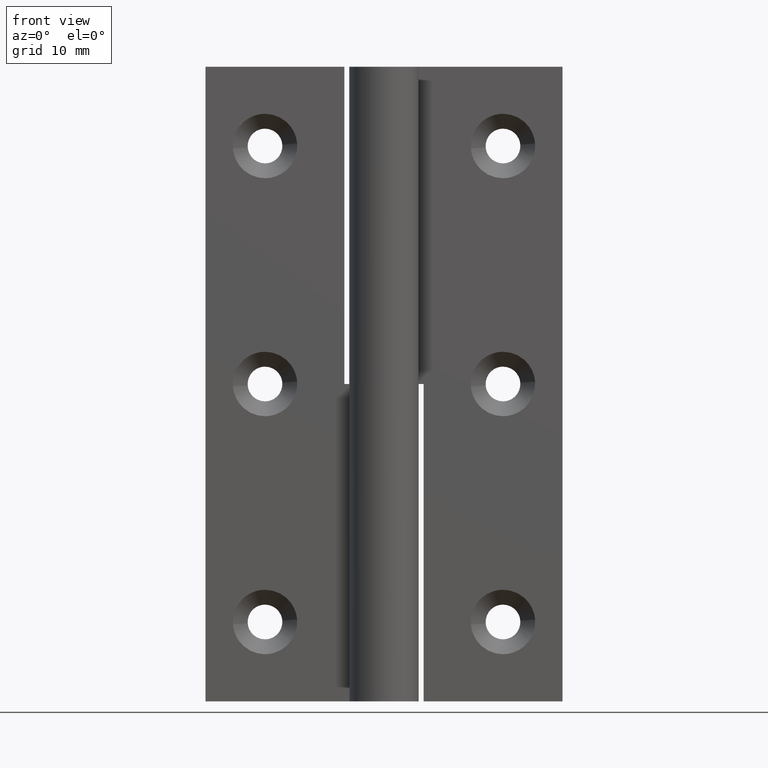
[diagram: clean part render]
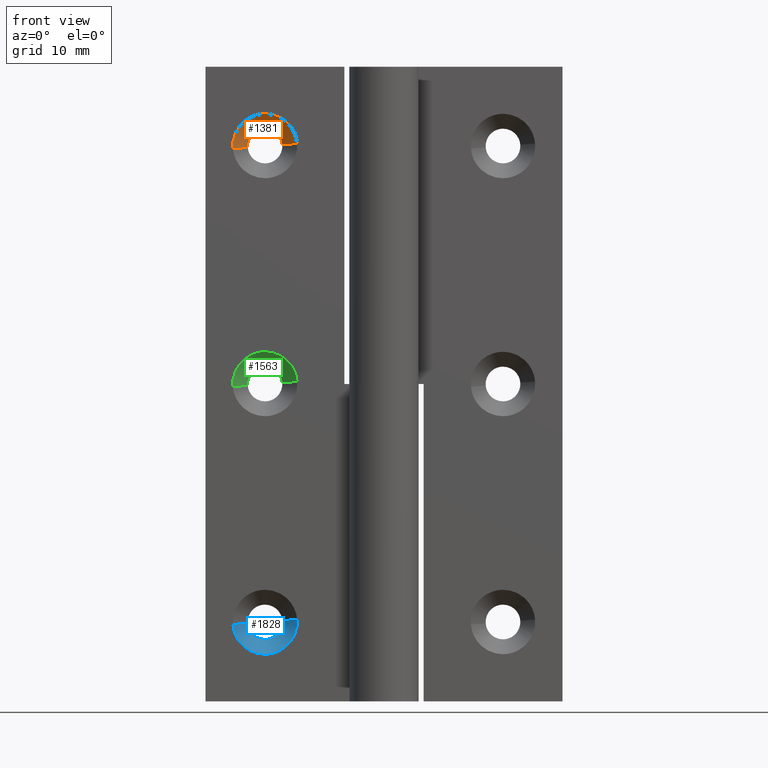
[diagram: same view with three faces highlighted in distinct colors, each labeled with its STEP entity id]
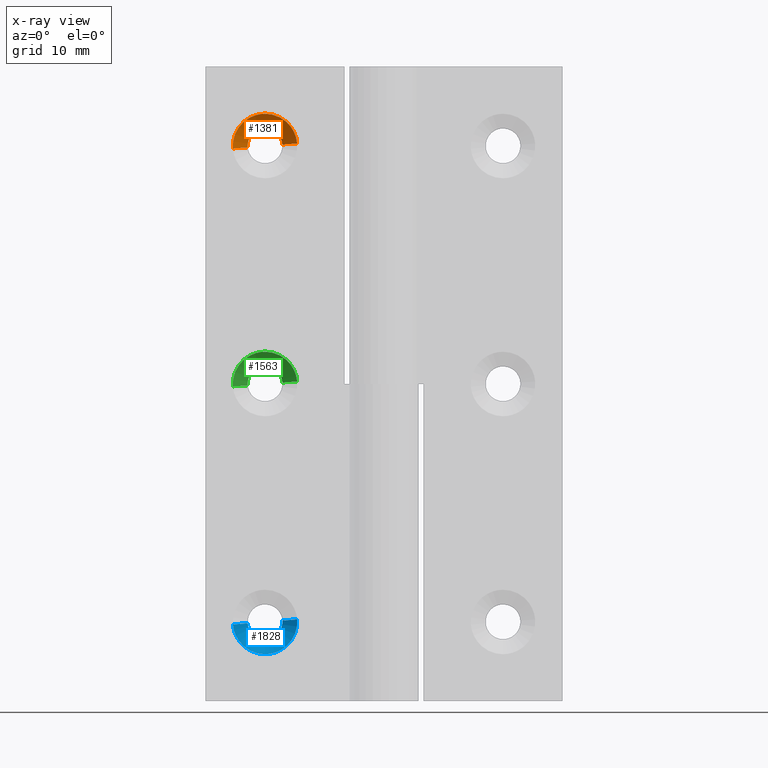
[diagram: x-ray of the same camera — body ghosted, the three highlighted faces saturated]
A machine part, front view with three faces highlighted in distinct colors.
The next image is the same camera in x-ray (body ghosted, the three faces saturated) — at least one of them is partly hidden behind the body in this view.
Their STEP definitions:

[orange] entity #1381 — the highlighted face is a freeform B-spline surface patch.
#1283=CARTESIAN_POINT('',(-10.292779065982019,3.537500000000001,56.134369201433927));
#1284=CARTESIAN_POINT('',(-10.427140267415954,3.537500000000000,57.841590135451902));
#1285=CARTESIAN_POINT('',(-12.134361201433940,3.537500000000001,57.707228934017976));
#1286=CARTESIAN_POINT('',(-13.841582135451915,3.537500000000000,57.572867732584037));
#1287=CARTESIAN_POINT('',(-13.707220934017981,3.537500000000001,55.865646798566061));
#1288=CARTESIAN_POINT('',(-8.721699655351969,1.961562500000000,56.258015832607533));
#1289=CARTESIAN_POINT('',(-8.979707487959507,1.961562500000000,59.536316177255557));
#1290=CARTESIAN_POINT('',(-12.258007832607539,1.961562500000000,59.278308344648032));
#1291=CARTESIAN_POINT('',(-15.536308177255563,1.961562500000000,59.020300512040500));
#1292=CARTESIAN_POINT('',(-15.278300344648031,1.961562500000000,55.742000167392462));
#1300=(BOUNDED_SURFACE()B_SPLINE_SURFACE(2,1,((#1283,#1288),(#1284,#1289),(#1285,#1290),(#1286,#1291),(#1287,#1292)),.UNSPECIFIED.,.F.,.F.,.U.)B_SPLINE_SURFACE_WITH_KNOTS((3,2,3),(2,2),(0.0,5.448461646065103,10.896923292130211),(0.0,2.228712185952356),.UNSPECIFIED.)GEOMETRIC_REPRESENTATION_ITEM()RATIONAL_B_SPLINE_SURFACE(((1.0,1.0),(0.707106781186548,0.707106781186548),(1.0,1.0),(0.707106781186548,0.707106781186548),(1.0,1.0)))REPRESENTATION_ITEM('')SURFACE());
#1301=CARTESIAN_POINT('',(-12.0,2.0,59.250008000000001));
#1302=VERTEX_POINT('',#1301);
#1303=CARTESIAN_POINT('',(-8.760018665336727,1.999999999923258,56.255000061704692));
#1304=VERTEX_POINT('',#1303);
#1305=CARTESIAN_POINT('',(-12.0,2.0,59.250008000000001));
#1306=CARTESIAN_POINT('',(-8.995730903195675,2.0,59.250008000000001));
#1307=CARTESIAN_POINT('',(-8.760018665336727,1.999999999923259,56.255000061704692));
#1315=(BOUNDED_CURVE()B_SPLINE_CURVE(2,(#1305,#1306,#1307),.UNSPECIFIED.,.F.,.U.)B_SPLINE_CURVE_WITH_KNOTS((3,3),(0.0,0.236331300571056),.UNSPECIFIED.)CURVE()GEOMETRIC_REPRESENTATION_ITEM()RATIONAL_B_SPLINE_CURVE((1.0,0.723120658677496,0.969723356043029))REPRESENTATION_ITEM(''));
#1316=EDGE_CURVE('',#1302,#1304,#1315,.T.);
#1317=ORIENTED_EDGE('',*,*,#1316,.F.);
#1318=CARTESIAN_POINT('',(-15.239981334663270,1.999999999923259,55.745015938295303));
#1319=VERTEX_POINT('',#1318);
#1320=CARTESIAN_POINT('',(-15.239981334663273,1.999999999923259,55.745015938295289));
#1321=CARTESIAN_POINT('',(-15.250000000000000,2.000000000000000,55.872315151639192));
#1322=CARTESIAN_POINT('',(-15.250000000000000,2.0,56.000007999999987));
#1323=CARTESIAN_POINT('',(-15.250000000000002,2.0,59.250008000000001));
#1324=CARTESIAN_POINT('',(-12.0,2.0,59.250008000000001));
#1332=(BOUNDED_CURVE()B_SPLINE_CURVE(2,(#1320,#1321,#1322,#1323,#1324),.UNSPECIFIED.,.F.,.U.)B_SPLINE_CURVE_WITH_KNOTS((3,2,3),(0.736331300571056,0.750000000000000,1.0),.UNSPECIFIED.)CURVE()GEOMETRIC_REPRESENTATION_ITEM()RATIONAL_B_SPLINE_CURVE((0.969723356043030,0.983986122509052,1.0,0.707106781186547,1.0))REPRESENTATION_ITEM(''));
#1333=EDGE_CURVE('',#1319,#1302,#1332,.T.);
#1334=ORIENTED_EDGE('',*,*,#1333,.F.);
#1335=CARTESIAN_POINT('',(-13.744605334080100,3.499999999880688,55.862704581554397));
#1336=VERTEX_POINT('',#1335);
#1337=CARTESIAN_POINT('',(-13.744605334080100,3.499999999880688,55.862704581554397));
#1338=CARTESIAN_POINT('',(-15.239981334663270,1.999999999923259,55.745015938295303));
#1339=QUASI_UNIFORM_CURVE('',1,(#1337,#1338),.UNSPECIFIED.,.F.,.U.);
#1340=EDGE_CURVE('',#1336,#1319,#1339,.T.);
#1341=ORIENTED_EDGE('',*,*,#1340,.F.);
#1342=CARTESIAN_POINT('',(-12.0,3.500000000000000,57.750008000000001));
#1343=VERTEX_POINT('',#1342);
#1344=CARTESIAN_POINT('',(-13.744605334080106,3.499999999880688,55.862704581554404));
#1345=CARTESIAN_POINT('',(-13.750000000000000,3.500000000000000,55.931250311819845));
#1346=CARTESIAN_POINT('',(-13.750000000000000,3.500000000000000,56.000007999999987));
#1347=CARTESIAN_POINT('',(-13.750000000000000,3.500000000000000,57.750007999999987));
#1348=CARTESIAN_POINT('',(-12.0,3.500000000000000,57.750008000000001));
#1356=(BOUNDED_CURVE()B_SPLINE_CURVE(2,(#1344,#1345,#1346,#1347,#1348),.UNSPECIFIED.,.F.,.U.)B_SPLINE_CURVE_WITH_KNOTS((3,2,3),(0.736331300453442,0.750000000000000,1.0),.UNSPECIFIED.)CURVE()GEOMETRIC_REPRESENTATION_ITEM()RATIONAL_B_SPLINE_CURVE((0.969723355797579,0.983986122371259,1.0,0.707106781186547,1.0))REPRESENTATION_ITEM(''));
#1357=EDGE_CURVE('',#1336,#1343,#1356,.T.);
#1358=ORIENTED_EDGE('',*,*,#1357,.T.);
#1359=CARTESIAN_POINT('',(-10.255394665919900,3.499999999880689,56.137311418445591));
#1360=VERTEX_POINT('',#1359);
#1361=CARTESIAN_POINT('',(-12.0,3.500000000000000,57.750008000000001));
#1362=CARTESIAN_POINT('',(-10.382316641295615,3.499999999999999,57.750008000000001));
#1363=CARTESIAN_POINT('',(-10.255394665919900,3.499999999880689,56.137311418445584));
#1371=(BOUNDED_CURVE()B_SPLINE_CURVE(2,(#1361,#1362,#1363),.UNSPECIFIED.,.F.,.U.)B_SPLINE_CURVE_WITH_KNOTS((3,3),(0.0,0.236331300453441),.UNSPECIFIED.)CURVE()GEOMETRIC_REPRESENTATION_ITEM()RATIONAL_B_SPLINE_CURVE((1.0,0.723120658815290,0.969723355797576))REPRESENTATION_ITEM(''));
#1372=EDGE_CURVE('',#1343,#1360,#1371,.T.);
#1373=ORIENTED_EDGE('',*,*,#1372,.T.);
#1374=CARTESIAN_POINT('',(-10.255394665919900,3.499999999880689,56.137311418445591));
#1375=CARTESIAN_POINT('',(-8.760018665336727,1.999999999923258,56.255000061704692));
#1376=QUASI_UNIFORM_CURVE('',1,(#1374,#1375),.UNSPECIFIED.,.F.,.U.);
#1377=EDGE_CURVE('',#1360,#1304,#1376,.T.);
#1378=ORIENTED_EDGE('',*,*,#1377,.T.);
#1379=EDGE_LOOP('',(#1317,#1334,#1341,#1358,#1373,#1378));
#1380=FACE_OUTER_BOUND('',#1379,.T.);
#1381=ADVANCED_FACE('',(#1380),#1300,.F.);

[blue] entity #1828 — the highlighted face is a freeform B-spline surface patch.
#1667=CARTESIAN_POINT('',(-8.760018665336727,1.999999999923258,8.255000061704696));
#1668=VERTEX_POINT('',#1667);
#1682=CARTESIAN_POINT('',(-15.239981334663270,1.999999999923259,7.745015938295305));
#1683=VERTEX_POINT('',#1682);
#1699=CARTESIAN_POINT('',(-13.744605334080100,3.499999999880689,7.862704581554401));
#1700=VERTEX_POINT('',#1699);
#1701=CARTESIAN_POINT('',(-13.744605334080100,3.499999999880689,7.862704581554401));
#1702=CARTESIAN_POINT('',(-15.239981334663270,1.999999999923259,7.745015938295305));
#1703=QUASI_UNIFORM_CURVE('',1,(#1701,#1702),.UNSPECIFIED.,.F.,.U.);
#1704=EDGE_CURVE('',#1700,#1683,#1703,.T.);
#1723=CARTESIAN_POINT('',(-10.255394665919900,3.499999999880688,8.137311418445599));
#1724=VERTEX_POINT('',#1723);
#1738=CARTESIAN_POINT('',(-10.255394665919900,3.499999999880688,8.137311418445599));
#1739=CARTESIAN_POINT('',(-8.760018665336727,1.999999999923258,8.255000061704696));
#1740=QUASI_UNIFORM_CURVE('',1,(#1738,#1739),.UNSPECIFIED.,.F.,.U.);
#1741=EDGE_CURVE('',#1724,#1668,#1740,.T.);
#1746=CARTESIAN_POINT('',(-13.707220934017981,3.537500000000001,7.865646798566064));
#1747=CARTESIAN_POINT('',(-13.572859732584044,3.537500000000000,6.158425864548084));
#1748=CARTESIAN_POINT('',(-11.865638798566060,3.537500000000001,6.292787065982019));
#1749=CARTESIAN_POINT('',(-10.158417864548085,3.537500000000000,6.427148267415954));
#1750=CARTESIAN_POINT('',(-10.292779065982019,3.537500000000001,8.134369201433934));
#1751=CARTESIAN_POINT('',(-15.278300344648031,1.961562500000000,7.742000167392463));
#1752=CARTESIAN_POINT('',(-15.020292512040500,1.961562500000000,4.463699822744433));
#1753=CARTESIAN_POINT('',(-11.741992167392461,1.961562500000000,4.721707655351970));
#1754=CARTESIAN_POINT('',(-8.463691822744433,1.961562500000000,4.979715487959507));
#1755=CARTESIAN_POINT('',(-8.721699655351969,1.961562500000000,8.258015832607537));
#1763=(BOUNDED_SURFACE()B_SPLINE_SURFACE(2,1,((#1746,#1751),(#1747,#1752),(#1748,#1753),(#1749,#1754),(#1750,#1755)),.UNSPECIFIED.,.F.,.F.,.U.)B_SPLINE_SURFACE_WITH_KNOTS((3,2,3),(2,2),(0.0,5.448461646065095,10.896923292130190),(0.0,2.228712185952350),.UNSPECIFIED.)GEOMETRIC_REPRESENTATION_ITEM()RATIONAL_B_SPLINE_SURFACE(((1.0,1.0),(0.707106781186548,0.707106781186548),(1.0,1.0),(0.707106781186548,0.707106781186548),(1.0,1.0)))REPRESENTATION_ITEM('')SURFACE());
#1764=CARTESIAN_POINT('',(-12.0,2.0,4.750008000000000));
#1765=VERTEX_POINT('',#1764);
#1766=CARTESIAN_POINT('',(-8.760018665336727,1.999999999923258,8.255000061704696));
#1767=CARTESIAN_POINT('',(-8.750000000000000,2.000000000000000,8.127700848360812));
#1768=CARTESIAN_POINT('',(-8.750000000000000,2.0,8.000007999999999));
#1769=CARTESIAN_POINT('',(-8.750000000000000,2.0,4.750008000000000));
#1770=CARTESIAN_POINT('',(-12.0,2.0,4.750008000000000));
#1778=(BOUNDED_CURVE()B_SPLINE_CURVE(2,(#1766,#1767,#1768,#1769,#1770),.UNSPECIFIED.,.F.,.U.)B_SPLINE_CURVE_WITH_KNOTS((3,2,3),(0.236331300571056,0.250000000000000,0.500000000000000),.UNSPECIFIED.)CURVE()GEOMETRIC_REPRESENTATION_ITEM()RATIONAL_B_SPLINE_CURVE((0.969723356043029,0.983986122509052,1.0,0.707106781186547,1.0))REPRESENTATION_ITEM(''));
#1779=EDGE_CURVE('',#1668,#1765,#1778,.T.);
#1780=ORIENTED_EDGE('',*,*,#1779,.F.);
#1781=ORIENTED_EDGE('',*,*,#1741,.F.);
#1782=CARTESIAN_POINT('',(-12.0,3.500000000000000,6.250007999999999));
#1783=VERTEX_POINT('',#1782);
#1784=CARTESIAN_POINT('',(-10.255394665919898,3.499999999880688,8.137311418445599));
#1785=CARTESIAN_POINT('',(-10.250000000000000,3.500000000000000,8.068765688180164));
#1786=CARTESIAN_POINT('',(-10.250000000000000,3.500000000000000,8.000007999999999));
#1787=CARTESIAN_POINT('',(-10.250000000000000,3.500000000000000,6.250007999999999));
#1788=CARTESIAN_POINT('',(-12.0,3.500000000000000,6.250007999999999));
#1796=(BOUNDED_CURVE()B_SPLINE_CURVE(2,(#1784,#1785,#1786,#1787,#1788),.UNSPECIFIED.,.F.,.U.)B_SPLINE_CURVE_WITH_KNOTS((3,2,3),(0.236331300453441,0.250000000000000,0.500000000000000),.UNSPECIFIED.)CURVE()GEOMETRIC_REPRESENTATION_ITEM()RATIONAL_B_SPLINE_CURVE((0.969723355797576,0.983986122371258,1.0,0.707106781186547,1.0))REPRESENTATION_ITEM(''));
#1797=EDGE_CURVE('',#1724,#1783,#1796,.T.);
#1798=ORIENTED_EDGE('',*,*,#1797,.T.);
#1799=CARTESIAN_POINT('',(-12.0,3.500000000000000,6.250007999999999));
#1800=CARTESIAN_POINT('',(-13.617683358704380,3.500000000000000,6.250007999999999));
#1801=CARTESIAN_POINT('',(-13.744605334080102,3.499999999880689,7.862704581554401));
#1809=(BOUNDED_CURVE()B_SPLINE_CURVE(2,(#1799,#1800,#1801),.UNSPECIFIED.,.F.,.U.)B_SPLINE_CURVE_WITH_KNOTS((3,3),(0.500000000000000,0.736331300453441),.UNSPECIFIED.)CURVE()GEOMETRIC_REPRESENTATION_ITEM()RATIONAL_B_SPLINE_CURVE((1.0,0.723120658815290,0.969723355797575))REPRESENTATION_ITEM(''));
#1810=EDGE_CURVE('',#1783,#1700,#1809,.T.);
#1811=ORIENTED_EDGE('',*,*,#1810,.T.);
#1812=ORIENTED_EDGE('',*,*,#1704,.T.);
#1813=CARTESIAN_POINT('',(-12.0,2.0,4.750008000000000));
#1814=CARTESIAN_POINT('',(-15.004269096804318,1.999999999999999,4.750008000000001));
#1815=CARTESIAN_POINT('',(-15.239981334663272,1.999999999923259,7.745015938295305));
#1823=(BOUNDED_CURVE()B_SPLINE_CURVE(2,(#1813,#1814,#1815),.UNSPECIFIED.,.F.,.U.)B_SPLINE_CURVE_WITH_KNOTS((3,3),(0.500000000000000,0.736331300571055),.UNSPECIFIED.)CURVE()GEOMETRIC_REPRESENTATION_ITEM()RATIONAL_B_SPLINE_CURVE((1.0,0.723120658677496,0.969723356043028))REPRESENTATION_ITEM(''));
#1824=EDGE_CURVE('',#1765,#1683,#1823,.T.);
#1825=ORIENTED_EDGE('',*,*,#1824,.F.);
#1826=EDGE_LOOP('',(#1780,#1781,#1798,#1811,#1812,#1825));
#1827=FACE_OUTER_BOUND('',#1826,.T.);
#1828=ADVANCED_FACE('',(#1827),#1763,.F.);

[green] entity #1563 — the highlighted face is a freeform B-spline surface patch.
#1465=CARTESIAN_POINT('',(-10.292779065982019,3.537500000000001,32.134369201433927));
#1466=CARTESIAN_POINT('',(-10.427140267415954,3.537500000000000,33.841590135451924));
#1467=CARTESIAN_POINT('',(-12.134361201433940,3.537500000000001,33.707228934017976));
#1468=CARTESIAN_POINT('',(-13.841582135451915,3.537500000000000,33.572867732584044));
#1469=CARTESIAN_POINT('',(-13.707220934017981,3.537500000000001,31.865646798566068));
#1470=CARTESIAN_POINT('',(-8.721699655351969,1.961562500000000,32.258015832607541));
#1471=CARTESIAN_POINT('',(-8.979707487959507,1.961562500000000,35.536316177255578));
#1472=CARTESIAN_POINT('',(-12.258007832607539,1.961562500000000,35.278308344648032));
#1473=CARTESIAN_POINT('',(-15.536308177255563,1.961562500000000,35.020300512040500));
#1474=CARTESIAN_POINT('',(-15.278300344648031,1.961562500000000,31.742000167392469));
#1482=(BOUNDED_SURFACE()B_SPLINE_SURFACE(2,1,((#1465,#1470),(#1466,#1471),(#1467,#1472),(#1468,#1473),(#1469,#1474)),.UNSPECIFIED.,.F.,.F.,.U.)B_SPLINE_SURFACE_WITH_KNOTS((3,2,3),(2,2),(0.0,5.448461646065097,10.896923292130200),(0.0,2.228712185952352),.UNSPECIFIED.)GEOMETRIC_REPRESENTATION_ITEM()RATIONAL_B_SPLINE_SURFACE(((1.0,1.0),(0.707106781186548,0.707106781186548),(1.0,1.0),(0.707106781186548,0.707106781186548),(1.0,1.0)))REPRESENTATION_ITEM('')SURFACE());
#1483=CARTESIAN_POINT('',(-12.0,2.0,35.250008000000008));
#1484=VERTEX_POINT('',#1483);
#1485=CARTESIAN_POINT('',(-8.760018665336727,1.999999999923258,32.255000061704699));
#1486=VERTEX_POINT('',#1485);
#1487=CARTESIAN_POINT('',(-12.0,2.0,35.250008000000008));
#1488=CARTESIAN_POINT('',(-8.995730903195675,2.0,35.250008000000008));
#1489=CARTESIAN_POINT('',(-8.760018665336727,1.999999999923258,32.255000061704699));
#1497=(BOUNDED_CURVE()B_SPLINE_CURVE(2,(#1487,#1488,#1489),.UNSPECIFIED.,.F.,.U.)B_SPLINE_CURVE_WITH_KNOTS((3,3),(0.0,0.236331300571056),.UNSPECIFIED.)CURVE()GEOMETRIC_REPRESENTATION_ITEM()RATIONAL_B_SPLINE_CURVE((1.0,0.723120658677496,0.969723356043029))REPRESENTATION_ITEM(''));
#1498=EDGE_CURVE('',#1484,#1486,#1497,.T.);
#1499=ORIENTED_EDGE('',*,*,#1498,.F.);
#1500=CARTESIAN_POINT('',(-15.239981334663270,1.999999999923259,31.745015938295300));
#1501=VERTEX_POINT('',#1500);
#1502=CARTESIAN_POINT('',(-15.239981334663277,1.999999999923259,31.745015938295303));
#1503=CARTESIAN_POINT('',(-15.250000000000002,2.000000000000000,31.872315151639189));
#1504=CARTESIAN_POINT('',(-15.250000000000000,2.0,32.000008000000001));
#1505=CARTESIAN_POINT('',(-15.250000000000002,2.0,35.250008000000008));
#1506=CARTESIAN_POINT('',(-12.0,2.0,35.250008000000008));
#1514=(BOUNDED_CURVE()B_SPLINE_CURVE(2,(#1502,#1503,#1504,#1505,#1506),.UNSPECIFIED.,.F.,.U.)B_SPLINE_CURVE_WITH_KNOTS((3,2,3),(0.736331300571056,0.750000000000000,1.0),.UNSPECIFIED.)CURVE()GEOMETRIC_REPRESENTATION_ITEM()RATIONAL_B_SPLINE_CURVE((0.969723356043030,0.983986122509052,1.0,0.707106781186547,1.0))REPRESENTATION_ITEM(''));
#1515=EDGE_CURVE('',#1501,#1484,#1514,.T.);
#1516=ORIENTED_EDGE('',*,*,#1515,.F.);
#1517=CARTESIAN_POINT('',(-13.744605334080100,3.499999999880689,31.862704581554400));
#1518=VERTEX_POINT('',#1517);
#1519=CARTESIAN_POINT('',(-13.744605334080100,3.499999999880689,31.862704581554400));
#1520=CARTESIAN_POINT('',(-15.239981334663270,1.999999999923259,31.745015938295300));
#1521=QUASI_UNIFORM_CURVE('',1,(#1519,#1520),.UNSPECIFIED.,.F.,.U.);
#1522=EDGE_CURVE('',#1518,#1501,#1521,.T.);
#1523=ORIENTED_EDGE('',*,*,#1522,.F.);
#1524=CARTESIAN_POINT('',(-12.0,3.500000000000000,33.750008000000008));
#1525=VERTEX_POINT('',#1524);
#1526=CARTESIAN_POINT('',(-13.744605334080100,3.499999999880689,31.862704581554400));
#1527=CARTESIAN_POINT('',(-13.750000000000000,3.500000000000001,31.931250311819841));
#1528=CARTESIAN_POINT('',(-13.750000000000000,3.500000000000000,32.000008000000001));
#1529=CARTESIAN_POINT('',(-13.750000000000000,3.500000000000000,33.750008000000001));
#1530=CARTESIAN_POINT('',(-12.0,3.500000000000000,33.750008000000008));
#1538=(BOUNDED_CURVE()B_SPLINE_CURVE(2,(#1526,#1527,#1528,#1529,#1530),.UNSPECIFIED.,.F.,.U.)B_SPLINE_CURVE_WITH_KNOTS((3,2,3),(0.736331300453441,0.750000000000000,1.0),.UNSPECIFIED.)CURVE()GEOMETRIC_REPRESENTATION_ITEM()RATIONAL_B_SPLINE_CURVE((0.969723355797576,0.983986122371257,1.0,0.707106781186547,1.0))REPRESENTATION_ITEM(''));
#1539=EDGE_CURVE('',#1518,#1525,#1538,.T.);
#1540=ORIENTED_EDGE('',*,*,#1539,.T.);
#1541=CARTESIAN_POINT('',(-10.255394665919900,3.499999999880689,32.137311418445599));
#1542=VERTEX_POINT('',#1541);
#1543=CARTESIAN_POINT('',(-12.0,3.500000000000000,33.750008000000008));
#1544=CARTESIAN_POINT('',(-10.382316641295613,3.499999999999999,33.750008000000008));
#1545=CARTESIAN_POINT('',(-10.255394665919898,3.499999999880688,32.137311418445606));
#1553=(BOUNDED_CURVE()B_SPLINE_CURVE(2,(#1543,#1544,#1545),.UNSPECIFIED.,.F.,.U.)B_SPLINE_CURVE_WITH_KNOTS((3,3),(0.0,0.236331300453441),.UNSPECIFIED.)CURVE()GEOMETRIC_REPRESENTATION_ITEM()RATIONAL_B_SPLINE_CURVE((1.0,0.723120658815290,0.969723355797576))REPRESENTATION_ITEM(''));
#1554=EDGE_CURVE('',#1525,#1542,#1553,.T.);
#1555=ORIENTED_EDGE('',*,*,#1554,.T.);
#1556=CARTESIAN_POINT('',(-10.255394665919900,3.499999999880689,32.137311418445599));
#1557=CARTESIAN_POINT('',(-8.760018665336727,1.999999999923258,32.255000061704699));
#1558=QUASI_UNIFORM_CURVE('',1,(#1556,#1557),.UNSPECIFIED.,.F.,.U.);
#1559=EDGE_CURVE('',#1542,#1486,#1558,.T.);
#1560=ORIENTED_EDGE('',*,*,#1559,.T.);
#1561=EDGE_LOOP('',(#1499,#1516,#1523,#1540,#1555,#1560));
#1562=FACE_OUTER_BOUND('',#1561,.T.);
#1563=ADVANCED_FACE('',(#1562),#1482,.F.);